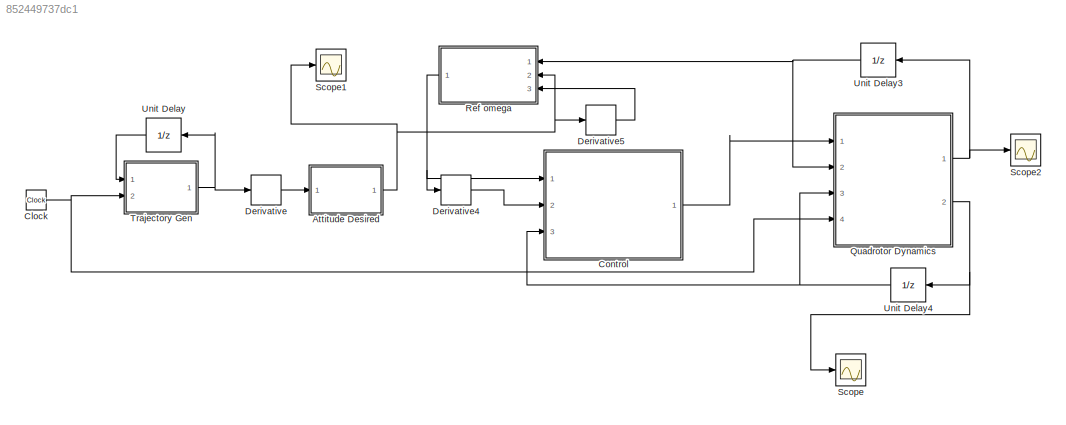
MODEL slx_852449737dc1
KIND model
CONFIG AbsTol = auto
CONFIG EnableMultiTasking = off
CONFIG FixedStep = auto
CONFIG MaxStep = auto
CONFIG MinStep = auto
CONFIG RelTol = 1e-3
CONFIG SampleTimeConstraint = Unconstrained
CONFIG SolverName = VariableStepAuto
CONFIG StartTime = 0.0
CONFIG StopTime = 100
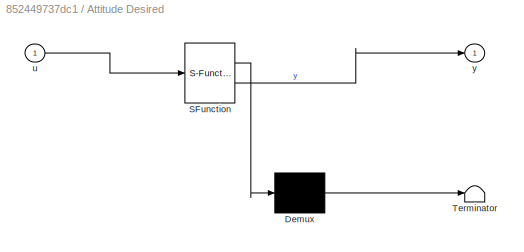
BLOCK [SubSystem] Attitude Desired
  ErrorFcn = Stateflow.Translate.translate
  PermitHierarchicalResolution = ExplicitOnly
  Ports = [1, 1]
  RequestExecContextInheritance = off
  SFBlockType = MATLAB Function
  TreatAsAtomicUnit = on
BLOCK [Demux] Attitude Desired/ Demux 
  Outputs = 1
  Ports = [1, 1]
BLOCK [S-Function] Attitude Desired/ SFunction 
  EnableBusSupport = on
  FunctionName = sf_sfun
  PortCounts = [1 2]
  Ports = [1, 2]
  SFcnIsStateOwnerBlock = off
  SFunctionDeploymentMode = off
  Tag = Stateflow S-Function 2
BLOCK [Terminator] Attitude Desired/ Terminator 
BLOCK [Inport] Attitude Desired/u
BLOCK [Outport] Attitude Desired/y
BLOCK [Clock] Clock
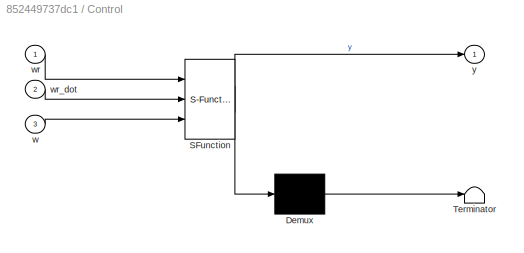
BLOCK [SubSystem] Control
  ErrorFcn = Stateflow.Translate.translate
  PermitHierarchicalResolution = ExplicitOnly
  Ports = [3, 1]
  RequestExecContextInheritance = off
  SFBlockType = MATLAB Function
  TreatAsAtomicUnit = on
BLOCK [Demux] Control/ Demux 
  Outputs = 1
  Ports = [1, 1]
BLOCK [S-Function] Control/ SFunction 
  EnableBusSupport = on
  FunctionName = sf_sfun
  PortCounts = [3 2]
  Ports = [3, 2]
  SFcnIsStateOwnerBlock = off
  SFunctionDeploymentMode = off
  Tag = Stateflow S-Function 3
BLOCK [Terminator] Control/ Terminator 
BLOCK [Inport] Control/w
  Port = 3
BLOCK [Inport] Control/wr
BLOCK [Inport] Control/wr_dot
  Port = 2
BLOCK [Outport] Control/y
BLOCK [Derivative] Derivative
BLOCK [Derivative] Derivative4
BLOCK [Derivative] Derivative5
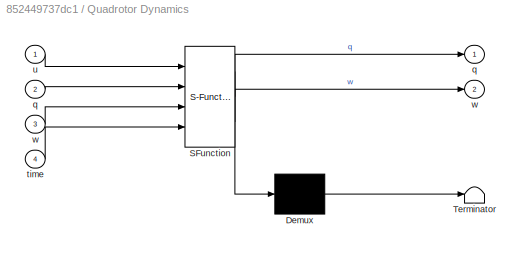
BLOCK [SubSystem] Quadrotor Dynamics
  ErrorFcn = Stateflow.Translate.translate
  PermitHierarchicalResolution = ExplicitOnly
  Ports = [4, 2]
  RequestExecContextInheritance = off
  SFBlockType = MATLAB Function
  TreatAsAtomicUnit = on
BLOCK [Demux] Quadrotor Dynamics/ Demux 
  Outputs = 1
  Ports = [1, 1]
BLOCK [S-Function] Quadrotor Dynamics/ SFunction 
  EnableBusSupport = on
  FunctionName = sf_sfun
  PortCounts = [4 3]
  Ports = [4, 3]
  SFcnIsStateOwnerBlock = off
  SFunctionDeploymentMode = off
  Tag = Stateflow S-Function 4
BLOCK [Terminator] Quadrotor Dynamics/ Terminator 
BLOCK [Outport] Quadrotor Dynamics/q
BLOCK [Inport] Quadrotor Dynamics/q 
  Port = 2
BLOCK [Inport] Quadrotor Dynamics/time
  Port = 4
BLOCK [Inport] Quadrotor Dynamics/u
BLOCK [Outport] Quadrotor Dynamics/w
  Port = 2
BLOCK [Inport] Quadrotor Dynamics/w 
  Port = 3
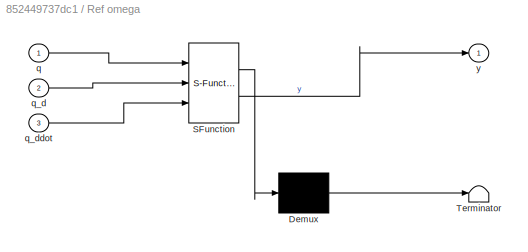
BLOCK [SubSystem] Ref omega
  ErrorFcn = Stateflow.Translate.translate
  NameLocation = top
  PermitHierarchicalResolution = ExplicitOnly
  Ports = [3, 1]
  RequestExecContextInheritance = off
  SFBlockType = MATLAB Function
  TreatAsAtomicUnit = on
BLOCK [Demux] Ref omega/ Demux 
  Outputs = 1
  Ports = [1, 1]
BLOCK [S-Function] Ref omega/ SFunction 
  EnableBusSupport = on
  FunctionName = sf_sfun
  PortCounts = [3 2]
  Ports = [3, 2]
  SFcnIsStateOwnerBlock = off
  SFunctionDeploymentMode = off
  Tag = Stateflow S-Function 5
BLOCK [Terminator] Ref omega/ Terminator 
BLOCK [Inport] Ref omega/q
BLOCK [Inport] Ref omega/q_d
  Port = 2
BLOCK [Inport] Ref omega/q_ddot
  Port = 3
BLOCK [Outport] Ref omega/y
BLOCK [Scope] Scope
  Floating = off
  NumInputPorts = 1
  Ports = [1]
  ScopeSpecificationString = Simulink.scopes.TimeScopeBlockCfg('CurrentConfiguration', extmgr.ConfigurationSet(extmgr.Configuration('Core','General UI',true),extmgr.Configuration('Core','Source UI',true),extmgr.Configuration('Sources','WiredSimulink',true),extmgr.Configuration('Visuals','Time Domain',true,'SerializedDisplays',{struct('MinYLimReal','-0.02296','MaxYLimReal','0.03966','YLabelReal','','MinYLimMag','0.00000','MaxY...<+1423ch>
BLOCK [Scope] Scope1
  Floating = off
  NumInputPorts = 1
  Ports = [1]
  ScopeSpecificationString = Simulink.scopes.TimeScopeBlockCfg('CurrentConfiguration', extmgr.ConfigurationSet(extmgr.Configuration('Core','General UI',true),extmgr.Configuration('Core','Source UI',true),extmgr.Configuration('Sources','WiredSimulink',true,'DataLoggingVariableName','ScopeData1'),extmgr.Configuration('Visuals','Time Domain',true,'SerializedDisplays',{struct('MinYLimReal','-0.00868','MaxYLimReal','0.01499','YLab...<+1505ch>
BLOCK [Scope] Scope2
  Floating = off
  NumInputPorts = 1
  Ports = [1]
  ScopeSpecificationString = Simulink.scopes.TimeScopeBlockCfg('CurrentConfiguration', extmgr.ConfigurationSet(extmgr.Configuration('Core','General UI',true),extmgr.Configuration('Core','Source UI',true),extmgr.Configuration('Sources','WiredSimulink',true,'DataLoggingVariableName','ScopeData1'),extmgr.Configuration('Visuals','Time Domain',true,'SerializedDisplays',{struct('MinYLimReal','-0.00827','MaxYLimReal','0.01428','YLab...<+1490ch>
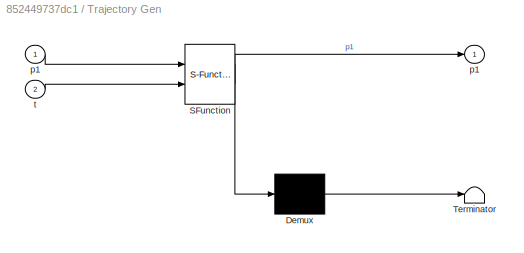
BLOCK [SubSystem] Trajectory Gen
  ErrorFcn = Stateflow.Translate.translate
  PermitHierarchicalResolution = ExplicitOnly
  Ports = [2, 1]
  RequestExecContextInheritance = off
  SFBlockType = MATLAB Function
  TreatAsAtomicUnit = on
BLOCK [Demux] Trajectory Gen/ Demux 
  Outputs = 1
  Ports = [1, 1]
BLOCK [S-Function] Trajectory Gen/ SFunction 
  EnableBusSupport = on
  FunctionName = sf_sfun
  PortCounts = [2 2]
  Ports = [2, 2]
  SFcnIsStateOwnerBlock = off
  SFunctionDeploymentMode = off
  Tag = Stateflow S-Function 1
BLOCK [Terminator] Trajectory Gen/ Terminator 
BLOCK [Outport] Trajectory Gen/p1
BLOCK [Inport] Trajectory Gen/p1 
BLOCK [Inport] Trajectory Gen/t
  Port = 2
BLOCK [UnitDelay] Unit Delay
  HasFrameUpgradeWarning = on
  NameLocation = top
  SampleTime = -1
BLOCK [UnitDelay] Unit Delay3
  HasFrameUpgradeWarning = on
  NameLocation = top
  SampleTime = -1
BLOCK [UnitDelay] Unit Delay4
  HasFrameUpgradeWarning = on
  NameLocation = top
  SampleTime = -1
NET Attitude Desired:1 -> Derivative5:1, Ref omega:2, Scope1:1
NET Clock:1 -> Quadrotor Dynamics:4, Trajectory Gen:2
LINE Control:1 -> Quadrotor Dynamics:1
LINE Derivative4:1 -> Control:2
LINE Derivative5:1 -> Ref omega:3
LINE Derivative:1 -> Attitude Desired:1
NET Quadrotor Dynamics:1 -> Scope2:1, Unit Delay3:1
NET Quadrotor Dynamics:2 -> Scope:1, Unit Delay4:1
NET Ref omega:1 -> Control:1, Derivative4:1
NET Trajectory Gen:1 -> Derivative:1, Unit Delay:1
NET Unit Delay3:1 -> Quadrotor Dynamics:2, Ref omega:1
NET Unit Delay4:1 -> Control:3, Quadrotor Dynamics:3
LINE Unit Delay:1 -> Trajectory Gen:1
note: NET lines group one-source signal fan-out (src -> all destinations, sorted); 1:1 wires keep LINE
CHART Trajectory Gen states=1 transitions=1
  STATE_LABEL 'eML_blk_kernel()'
  STATE_LABEL 'SCRIPT:\nfunction p1 = fcn(p1, t)\ndt = 0.1;\ntime = t;\n\npresent_state = p1;\n%p1 vector contains the position and velocity\nx_present = [present_state(1);present_state(2)];\ny_present = [present_state(3);present_state(4)];\nz_present = [present_state(5);present_state(6)];\n\nx_presentplus1 = rk4singlestep(@(time,x)x_pos(time,x),dt,time,x_present);\nx_present = x_presentplus1;\n\ny_presentplus1 = rk4singleste...<+624ch>'
CHART Attitude Desired states=1 transitions=1
  STATE_LABEL 'eML_blk_kernel()'
  STATE_LABEL 'SCRIPT:\nfunction y = fcn(u)\n\n\nX_bar = u(2);\nY_bar = u(4);\nZ_bar = u(6) + 9.81;\n\nFd = sqrt((X_bar)^2 + (Y_bar)^2 + (Z_bar)^2 );\n\npsi_d = 0;\nphi_d = asin(-(Y_bar)/Fd);\ntheta_d = atan2((X_bar)/Z_bar,1);\n\nq_d = [theta_d;phi_d;psi_d];\n\ny = q_d ;\n'
CHART Control states=1 transitions=1
  STATE_LABEL 'eML_blk_kernel()'
  STATE_LABEL 'SCRIPT:\nfunction y = fcn(wr, wr_dot, w)\nJ = [1 0 0; 0 1 0; 0 0 1];\nK = 4.4.*[1 0 0; 0 1 0; 0 0 1];\n\n\n\ncross = J*w;\ncross_skew = [0 -cross(3) cross(2);cross(3) 0 -cross(1);-cross(2) cross(1) 0];\nu = J*wr_dot - cross_skew*wr - K*(w - wr);\n\ny = u;\n\n'
CHART Quadrotor Dynamics states=1 transitions=1
  STATE_LABEL 'eML_blk_kernel()'
  STATE_LABEL 'SCRIPT:\nfunction [q,w] = fcn(u, q, w, time)\ndt = 0.36;\nif time < 0.01\n    w = [0;0;0];\n    q = [0;0;0];\nend\n\nw_new = rk4singlestepat(@(w,u)omega(w,u),dt,w,u);\nq_new = rk4singlestepat(@(q,w)attitude(q,w),dt,q,w);\n\nw = w_new;\nq = q_new;\n\nend\n\nfunction dw = omega(w,u)\nJ = [1 0 0;0 1 0;0 0 1];\nomega = [w(1);w(2);w(3)];\ncross = J*omega;\ncross_skew = [0 -cross(3) cross(2);cross(3) 0 -cross(1);-cross(2) ...<+480ch>'
CHART Ref omega states=1 transitions=1
  STATE_LABEL 'eML_blk_kernel()'
  STATE_LABEL 'SCRIPT:\nfunction y = fcn(q, q_d, q_ddot)\ntheta = q(1);\nphi = q(2);\npsi = q(3);\natt = [theta;phi;psi];\nL = [1 0 0;0 1 0;0 0 1];%lambda parameter\nJ = [1 0 0;0 1 0;0 0 1];%inertia tensor\n\nZ_q = [1 sin(phi)*tan(theta) cos(phi)*tan(theta);0 cos(phi) -sin(phi);0 sin(phi)*sec(theta) cos(phi)*sec(theta)];\nw_r = Z_q\\q_ddot + Z_q\\L*(q_d - att);\n\ny = w_r;\n'
CHART  states=0 transitions=0
CHART  states=0 transitions=0
CHART  states=0 transitions=0
CHART  states=0 transitions=0
CHART  states=0 transitions=0
